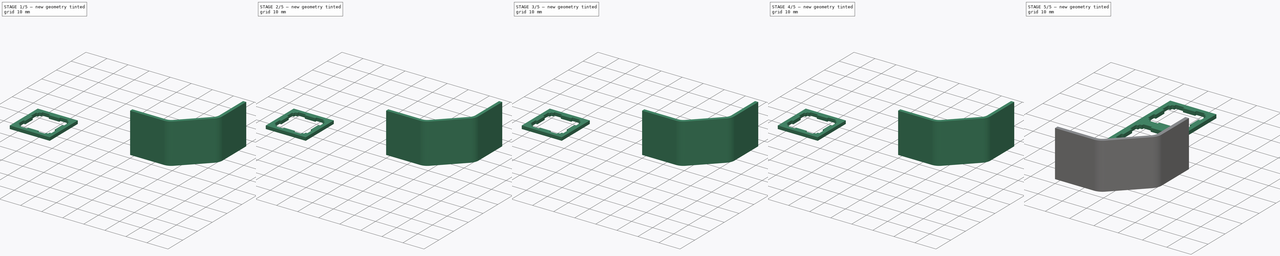
[diagram: build sequence overview — one tinted view per stage of 5, left to right]
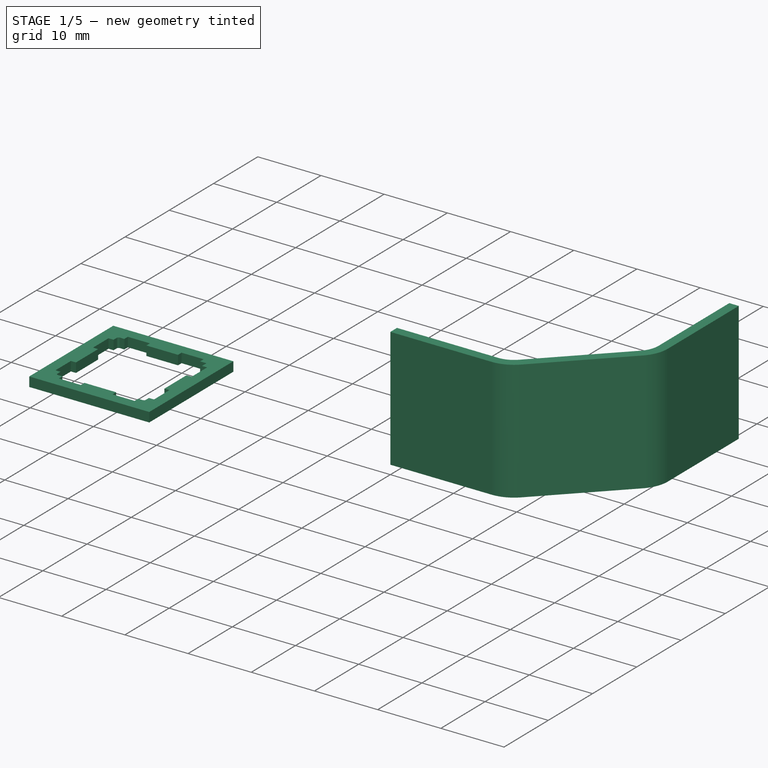
[diagram: stage 1 of 5 — iso view after this stage's code; geometry added in this stage tinted green]
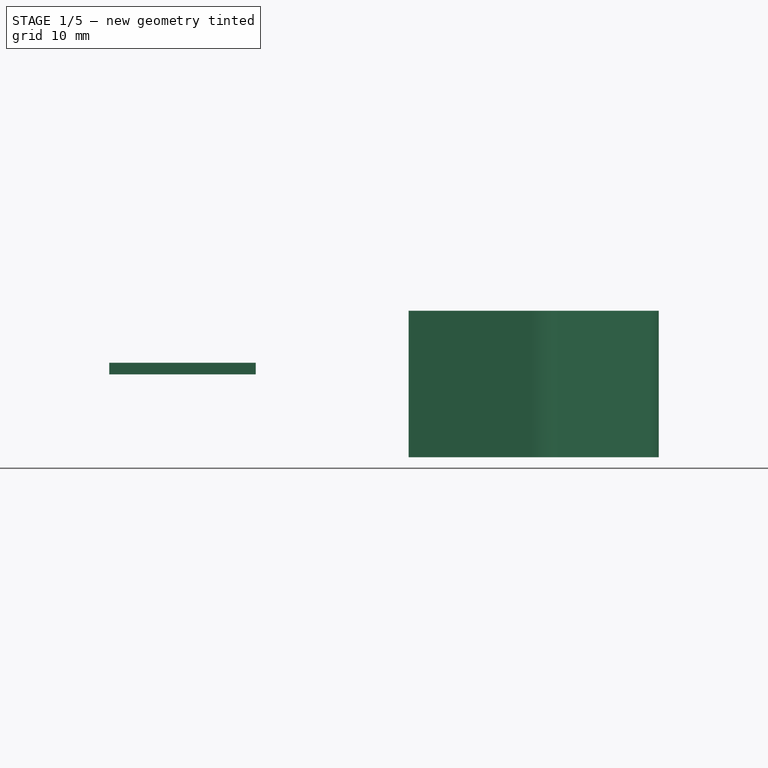
[diagram: stage 1 of 5 — front view after this stage's code; geometry added in this stage tinted green]
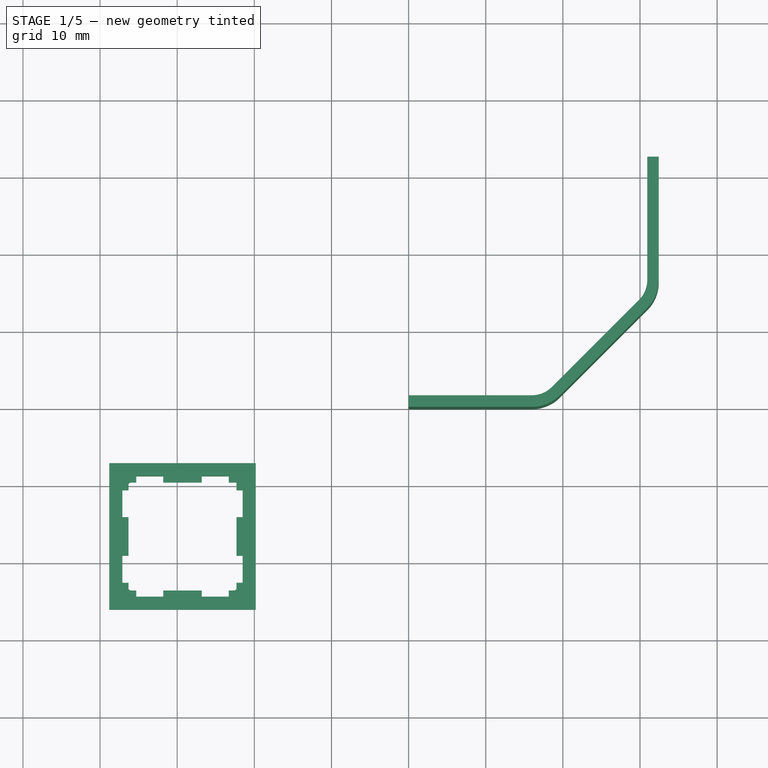
[diagram: stage 1 of 5 — top view after this stage's code; geometry added in this stage tinted green]
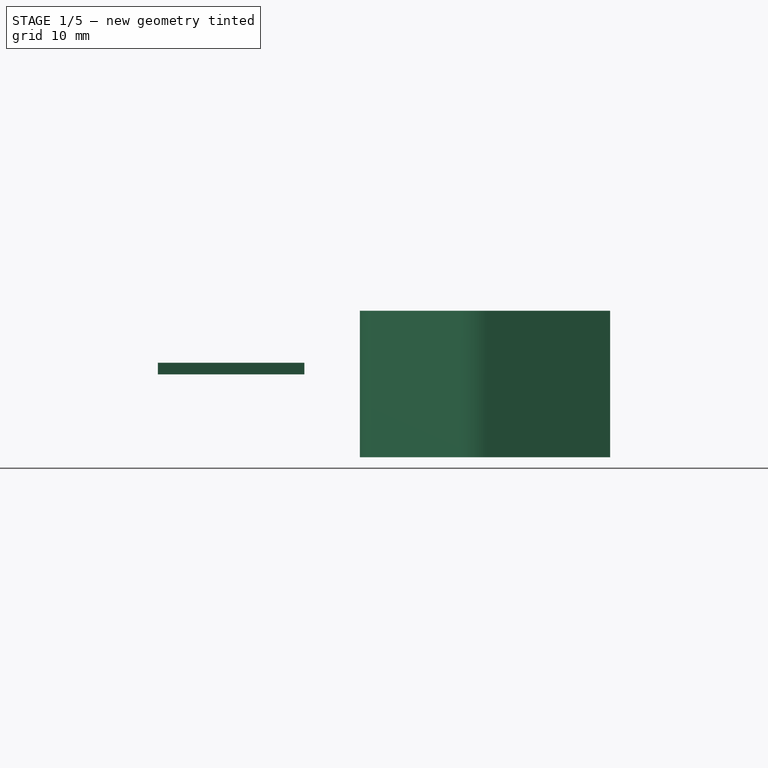
[diagram: stage 1 of 5 — right view after this stage's code; geometry added in this stage tinted green]
FCSTD DOCUMENT
Label: tryboard_2
objects: Part::Feature×48, Part::Fillet×20, Sketcher::SketchObject×3, Robot::TrajectoryObject×2, Robot::TrajectoryCompound×1, PartDesign::Pocket×1, Part::FeaturePython×1, PartDesign::Pad×1
note: 76 computed .brp shape members not serialized (recipe doc carries the construction recipe); baked Part::Feature solids carry a one-line shape summary decoded from their .brp

FEATURE [Part::Feature] rect5621_2_2_5_0_57_9_4_2_8_9_79_7_9_4_9
  shape: bbox 19.05 x 19.05 x 2e-07 mm, 1 faces, 0 solids (baked)
FEATURE [Part::Feature] rect5621_2_2_5_0_57_9_4_2_8_9_79_7_9_4_9001
  shape: bbox 15.59 x 15.59 x 2e-07 mm, 1 faces, 0 solids (baked)
FEATURE [Part::Feature] rect5621_2_2_5_0_57_9_4_2_8_9_4_2_0_5_2
  shape: bbox 19.05 x 19.05 x 2e-07 mm, 1 faces, 0 solids (baked)
FEATURE [Part::Feature] rect5621_2_2_5_0_57_9_4_2_8_9_4_2_0_5_2001
  shape: bbox 15.59 x 15.59 x 2e-07 mm, 1 faces, 0 solids (baked)
FEATURE [Part::Feature] rect5621_2_2_5_0_57_9_4_2_8_9_5_2_9_2_9
  shape: bbox 19.05 x 19.05 x 2e-07 mm, 1 faces, 0 solids (baked)
FEATURE [Part::Feature] rect5621_2_2_5_0_57_9_4_2_8_9_5_2_9_2_9001
  shape: bbox 15.59 x 15.59 x 2e-07 mm, 1 faces, 0 solids (baked)
FEATURE [Part::Feature] rect5621_2_2_5_0_57_9_4_2_8_9_79_74_2_69_5
  shape: bbox 19.05 x 19.05 x 2e-07 mm, 1 faces, 0 solids (baked)
FEATURE [Part::Feature] rect5621_2_2_5_0_57_9_4_2_8_9_79_74_2_69_5001
  shape: bbox 15.59 x 15.59 x 2e-07 mm, 1 faces, 0 solids (baked)
FEATURE [Part::Feature] rect5621_2_2_5_0_57_9_4_2_8_9_4_9_6_9_3
  shape: bbox 19.05 x 19.05 x 2e-07 mm, 1 faces, 0 solids (baked)
FEATURE [Part::Feature] rect5621_2_2_5_0_57_9_4_2_8_9_4_9_6_9_3001
  shape: bbox 15.59 x 15.59 x 2e-07 mm, 1 faces, 0 solids (baked)
FEATURE [Part::Feature] rect5621_2_2_5_0_57_9_4_2_8_9_5_3_0_53_6
  shape: bbox 19.05 x 19.05 x 2e-07 mm, 1 faces, 0 solids (baked)
FEATURE [Part::Feature] rect5621_2_2_5_0_57_9_4_2_8_9_5_3_0_53_6001
  shape: bbox 15.59 x 15.59 x 2e-07 mm, 1 faces, 0 solids (baked)
FEATURE [Part::Feature] rect5621_2_2_5_0_57_9_4_2_8_9_79_2_4_3_4
  shape: bbox 19.05 x 19.05 x 2e-07 mm, 1 faces, 0 solids (baked)
FEATURE [Part::Feature] rect5621_2_2_5_0_57_9_4_2_8_9_79_2_4_3_4001
  shape: bbox 15.59 x 15.59 x 2e-07 mm, 1 faces, 0 solids (baked)
FEATURE [Part::Feature] rect5621_2_2_5_0_57_9_4_2_8_9_4_0_2_39_3
  shape: bbox 19.05 x 19.05 x 2e-07 mm, 1 faces, 0 solids (baked)
FEATURE [Part::Feature] rect5621_2_2_5_0_57_9_4_2_8_9_4_0_2_39_3001
  shape: bbox 15.59 x 15.59 x 2e-07 mm, 1 faces, 0 solids (baked)
FEATURE [Part::Feature] rect5621_2_2_5_0_57_9_4_2_8_9_5_5_3_4_8
  shape: bbox 19.05 x 19.05 x 2e-07 mm, 1 faces, 0 solids (baked)
FEATURE [Part::Feature] rect5621_2_2_5_0_57_9_4_2_8_9_5_5_3_4_8001
  shape: bbox 15.59 x 15.59 x 2e-07 mm, 1 faces, 0 solids (baked)
FEATURE [Part::Feature] rect5621_2_2_5_0_57_9_4_2_8_9_79_7_7_55_2_2
  shape: bbox 19.05 x 19.05 x 2e-07 mm, 1 faces, 0 solids (baked)
FEATURE [Part::Feature] rect5621_2_2_5_0_57_9_4_2_8_9_79_7_7_55_2_2001
  shape: bbox 15.59 x 15.59 x 2e-07 mm, 1 faces, 0 solids (baked)
FEATURE [Part::Feature] rect5621_2_2_5_0_57_9_4_2_8_9_4_2_1_4_8_9
  shape: bbox 19.05 x 19.05 x 2e-07 mm, 1 faces, 0 solids (baked)
FEATURE [Part::Feature] rect5621_2_2_5_0_57_9_4_2_8_9_4_2_1_4_8_9001
  shape: bbox 15.59 x 15.59 x 2e-07 mm, 1 faces, 0 solids (baked)
FEATURE [Part::Feature] rect5621_2_2_5_0_57_9_4_2_8_9_5_2_6_5_6_2
  shape: bbox 19.05 x 19.05 x 2e-07 mm, 1 faces, 0 solids (baked)
FEATURE [Part::Feature] rect5621_2_2_5_0_57_9_4_2_8_9_5_2_6_5_6_2001
  shape: bbox 15.59 x 15.59 x 2e-07 mm, 1 faces, 0 solids (baked)
FEATURE [Part::Feature] rect5621_2_2_5_0_57_9_4_2_8_9_79_74_4_9_5_2
  shape: bbox 19.05 x 19.05 x 2e-07 mm, 1 faces, 0 solids (baked)
FEATURE [Part::Feature] rect5621_2_2_5_0_57_9_4_2_8_9_79_74_4_9_5_2001
  shape: bbox 15.59 x 15.59 x 2e-07 mm, 1 faces, 0 solids (baked)
FEATURE [Part::Feature] rect5621_2_2_5_0_57_9_4_2_8_9_4_9_7_6_9_2
  shape: bbox 19.05 x 19.05 x 2e-07 mm, 1 faces, 0 solids (baked)
FEATURE [Part::Feature] rect5621_2_2_5_0_57_9_4_2_8_9_4_9_7_6_9_2001
  shape: bbox 15.59 x 15.59 x 2e-07 mm, 1 faces, 0 solids (baked)
FEATURE [Part::Feature] rect5621_2_2_5_0_57_9_4_2_8_9_5_3_3_4_3_5
  shape: bbox 19.05 x 19.05 x 2e-07 mm, 1 faces, 0 solids (baked)
FEATURE [Part::Feature] rect5621_2_2_5_0_57_9_4_2_8_9_5_3_3_4_3_5001
  shape: bbox 15.59 x 15.59 x 2e-07 mm, 1 faces, 0 solids (baked)
FEATURE [Part::Feature] rect5621_2_2_5_0_57_9_4_2_8_9_1_7_4_3
  shape: bbox 19.05 x 19.05 x 2e-07 mm, 1 faces, 0 solids (baked)
FEATURE [Part::Feature] rect5621_2_2_5_0_57_9_4_2_8_9_1_7_4_3001
  shape: bbox 15.59 x 15.59 x 2e-07 mm, 1 faces, 0 solids (baked)
FEATURE [Part::Feature] rect5621_2_2_5_0_57_9_4_2_8_9_8_1_6_7_3_8_4
  shape: bbox 38.1 x 19.05 x 2e-07 mm, 1 faces, 0 solids (baked)
FEATURE [Part::Feature] rect5621_2_2_5_0_57_9_4_2_8_9_8_1_6_7_3_8_4001
  shape: bbox 3.334 x 13.98 x 2e-07 mm, 1 faces, 0 solids (baked)
FEATURE [Part::Feature] rect5621_2_2_5_0_57_9_4_2_8_9_8_1_6_7_3_8_4002
  shape: bbox 15.59 x 15.59 x 2e-07 mm, 1 faces, 0 solids (baked)
FEATURE [Part::Feature] rect5621_2_2_5_0_57_9_4_2_8_9_8_1_6_7_3_8_4003
  shape: bbox 3.325 x 13.98 x 2e-07 mm, 1 faces, 0 solids (baked)
FEATURE [Part::Feature] rect5621_2_2_5_0_57_9_4_2_8_9_79_7_9_4_9_9
  shape: bbox 19.05 x 19.05 x 2e-07 mm, 1 faces, 0 solids (baked)
FEATURE [Part::Feature] rect5621_2_2_5_0_57_9_4_2_8_9_79_7_9_4_9_9001
  shape: bbox 15.59 x 15.59 x 2e-07 mm, 1 faces, 0 solids (baked)
FEATURE [Part::Feature] rect5621_2_2_5_0_57_9_4_2_8_9_4_2_0_5_2_0
  shape: bbox 19.05 x 19.05 x 2e-07 mm, 1 faces, 0 solids (baked)
FEATURE [Part::Feature] rect5621_2_2_5_0_57_9_4_2_8_9_4_2_0_5_2_0001
  shape: bbox 15.59 x 15.59 x 2e-07 mm, 1 faces, 0 solids (baked)
FEATURE [Part::Feature] rect5621_2_2_5_0_57_9_4_2_8_9_5_2_9_2_9_6
  shape: bbox 19.05 x 19.05 x 2e-07 mm, 1 faces, 0 solids (baked)
FEATURE [Part::Feature] rect5621_2_2_5_0_57_9_4_2_8_9_5_2_9_2_9_6001
  shape: bbox 15.59 x 15.59 x 2e-07 mm, 1 faces, 0 solids (baked)
FEATURE [Part::Feature] rect7292_1_2_0_0_1_0_4
  shape: bbox 19.05 x 28.58 x 2e-07 mm, 1 faces, 0 solids (baked)
FEATURE [Part::Feature] rect7292_1_2_0_0_1_0_4001
  Placement = pos=(9.01355,14.3675,11.5639) rot=(0,0,1;0rad)
  shape: bbox 15.59 x 15.59 x 2e-07 mm, 1 faces, 0 solids (baked)
FEATURE [Part::Feature] rect5621_2_2_5_0_57_9_4_2_8_9_5_2_9_9_3_7_7_4_0_06_1
  shape: bbox 57.15 x 2.381 x 2e-07 mm, 1 faces, 0 solids (baked)
FEATURE [Part::Feature] rect7292_1_2_6_8_7_5
  shape: bbox 28.58 x 19.05 x 2e-07 mm, 1 faces, 0 solids (baked)
FEATURE [Part::Feature] rect7292_1_2_6_8_7_5001
  shape: bbox 15.59 x 15.59 x 2e-07 mm, 1 faces, 0 solids (baked)
FEATURE [Part::Feature] rect5621_2_2_5_0_57_9_4_2_8_9_5_2_9_9_3_7_74_5_1_5
  shape: bbox 28.58 x 4.763 x 2e-07 mm, 1 faces, 0 solids (baked)
FEATURE [Robot::TrajectoryObject] Trajectory
FEATURE [Robot::TrajectoryObject] Trajectory001
FEATURE [Robot::TrajectoryCompound] TrajectoryCompound
FEATURE [Sketcher::SketchObject] Sketch003
  Placement = pos=(-29.3145,-16.694,12.2475) rot=(0,0,1;0rad)
  sketch-geometry (16):
    g0: LineSegment StartX=-6 StartY=7.8 StartZ=0 EndX=-2.5 EndY=7.8 EndZ=0
    g1: LineSegment StartX=-2.5 StartY=7.8 StartZ=0 EndX=-2.5 EndY=-7.8 EndZ=0
    g2: LineSegment StartX=-2.5 StartY=-7.8 StartZ=0 EndX=-6 EndY=-7.8 EndZ=0
    g3: LineSegment StartX=-6 StartY=-7.8 StartZ=0 EndX=-6 EndY=7.8 EndZ=0
    g4: LineSegment StartX=2.5 StartY=7.8 StartZ=0 EndX=6 EndY=7.8 EndZ=0
    g5: LineSegment StartX=6 StartY=7.8 StartZ=0 EndX=6 EndY=-7.8 EndZ=0
    g6: LineSegment StartX=6 StartY=-7.8 StartZ=0 EndX=2.5 EndY=-7.8 EndZ=0
    g7: LineSegment StartX=2.5 StartY=-7.8 StartZ=0 EndX=2.5 EndY=7.8 EndZ=0
    g8: LineSegment StartX=-7.8 StartY=6 StartZ=0 EndX=7.8 EndY=6 EndZ=0
    g9: LineSegment StartX=7.8 StartY=6 StartZ=0 EndX=7.8 EndY=2.5 EndZ=0
    g10: LineSegment StartX=7.8 StartY=2.5 StartZ=0 EndX=-7.8 EndY=2.5 EndZ=0
    g11: LineSegment StartX=-7.8 StartY=2.5 StartZ=0 EndX=-7.8 EndY=6 EndZ=0
    g12: LineSegment StartX=-7.8 StartY=-2.5 StartZ=0 EndX=7.8 EndY=-2.5 EndZ=0
    g13: LineSegment StartX=7.8 StartY=-2.5 StartZ=0 EndX=7.8 EndY=-6 EndZ=0
    g14: LineSegment StartX=7.8 StartY=-6 StartZ=0 EndX=-7.8 EndY=-6 EndZ=0
    g15: LineSegment StartX=-7.8 StartY=-6 StartZ=0 EndX=-7.8 EndY=-2.5 EndZ=0
  constraints (47):
    c: Coincident(g0,g1)
    c: Coincident(g1,g2)
    c: Coincident(g2,g3)
    c: Coincident(g3,g0)
    c: Horizontal(g0)
    c: Horizontal(g2)
    c: Vertical(g1)
    c: Vertical(g3)
    c: Symmetric(g2,g0,g-1)
    c: Distance(g2) = 3.5
    c: Distance(g3) = 15.6
    c: Coincident(g4,g5)
    c: Coincident(g5,g6)
    c: Coincident(g6,g7)
    c: Coincident(g7,g4)
    c: Horizontal(g4)
    c: Horizontal(g6)
    c: Vertical(g5)
    c: Vertical(g7)
    c: Symmetric(g4,g5,g-1)
    c: Equal(g7,g3)
    c: Equal(g6,g2)
    c: Symmetric(g0,g4,g-2)
    c: Distance(g1,g6) = 5
    c: Coincident(g8,g9)
    c: Coincident(g9,g10)
    c: Coincident(g10,g11)
    c: Coincident(g11,g8)
    c: Horizontal(g8)
    c: Horizontal(g10)
    c: Vertical(g9)
    c: Vertical(g11)
    c: Coincident(g12,g13)
    c: Coincident(g13,g14)
    c: Coincident(g14,g15)
    c: Coincident(g15,g12)
    c: Horizontal(g12)
    c: Horizontal(g14)
    c: Vertical(g13)
    c: Vertical(g15)
    c: Equal(g10,g14)
    c: Equal(g14,g3)
    c: Equal(g13,g9)
    c: Equal(g9,g2)
    c: Symmetric(g12,g9,g-1)
    c: Symmetric(g13,g14,g-2)
    c: Distance(g10,g12) = 5
FEATURE [PartDesign::Pocket] Pocket001
  Length = 5
  Placement = pos=(-29.3145,-16.694,10.7475) rot=(0,0,1;0rad)
  Sketch = -> Sketch003
  Type = 1
FEATURE [Part::Fillet] Fillet
  Base = -> Pocket001
  Edges = 1 edges r=0.3: [Edge115]
FEATURE [Part::Fillet] Fillet001
  Base = -> Fillet
  Edges = 1 edges r=0.3: [Edge81]
FEATURE [Part::Fillet] Fillet002
  Base = -> Fillet001
  Edges = 1 edges r=0.3: [Edge82]
FEATURE [Sketcher::SketchObject] Sketch
  sketch-geometry (44):
    g0: LineSegment StartX=0 StartY=0 StartZ=0 EndX=16 EndY=0 EndZ=0
    g1: LineSegment [constr] StartX=16 StartY=0 StartZ=0 EndX=16 EndY=1.5 EndZ=0
    g2: LineSegment StartX=16 StartY=1.5 StartZ=0 EndX=0 EndY=1.5 EndZ=0
    g3: LineSegment StartX=0 StartY=1.5 StartZ=0 EndX=0 EndY=0 EndZ=0
    g4: LineSegment [constr] StartX=16 StartY=0 StartZ=0 EndX=17.5 EndY=0 EndZ=0
    g5: LineSegment [constr] StartX=17.5 StartY=0 StartZ=0 EndX=17.5 EndY=1.5 EndZ=0
    g6: LineSegment [constr] StartX=17.5 StartY=1.5 StartZ=0 EndX=16 EndY=1.5 EndZ=0
    g7: LineSegment [constr] StartX=16 StartY=1.5 StartZ=0 EndX=16 EndY=0 EndZ=0
    g8: LineSegment [constr] StartX=18.5607 StartY=2.56066 StartZ=0 EndX=19.6213 EndY=1.5 EndZ=0
    g9: LineSegment StartX=19.6213 StartY=1.5 StartZ=0 EndX=30.935 EndY=12.8137 EndZ=0
    g10: LineSegment [constr] StartX=30.935 StartY=12.8137 StartZ=0 EndX=29.8744 EndY=13.8744 EndZ=0
    g11: LineSegment StartX=29.8744 StartY=13.8744 StartZ=0 EndX=18.5607 EndY=2.56066 EndZ=0
    g12: LineSegment [constr] StartX=19.6213 StartY=1.5 StartZ=0 EndX=18.5607 EndY=2.56066 EndZ=0
    g13: LineSegment [constr] StartX=18.5607 StartY=2.56066 StartZ=0 EndX=17.5 EndY=1.5 EndZ=0
    g14: LineSegment [constr] StartX=17.5 StartY=1.5 StartZ=0 EndX=18.5607 EndY=0.43934 EndZ=0
    g15: LineSegment [constr] StartX=18.5607 StartY=0.43934 StartZ=0 EndX=19.6213 EndY=1.5 EndZ=0
    g16: LineSegment [constr] StartX=29.8744 StartY=13.8744 StartZ=0 EndX=30.935 EndY=12.8137 EndZ=0
    g17: LineSegment [constr] StartX=30.935 StartY=12.8137 StartZ=0 EndX=31.9957 EndY=13.8744 EndZ=0
    g18: LineSegment [constr] StartX=31.9957 StartY=13.8744 StartZ=0 EndX=30.935 EndY=14.935 EndZ=0
    g19: LineSegment [constr] StartX=30.935 StartY=14.935 StartZ=0 EndX=29.8744 EndY=13.8744 EndZ=0
    g20: LineSegment [constr] StartX=32.435 StartY=16.435 StartZ=0 EndX=30.935 EndY=16.435 EndZ=0
    g21: LineSegment StartX=30.935 StartY=16.435 StartZ=0 EndX=30.935 EndY=32.435 EndZ=0
    g22: LineSegment StartX=30.935 StartY=32.435 StartZ=0 EndX=32.435 EndY=32.435 EndZ=0
    g23: LineSegment StartX=32.435 StartY=32.435 StartZ=0 EndX=32.435 EndY=16.435 EndZ=0
    g24: LineSegment [constr] StartX=32.435 StartY=16.435 StartZ=0 EndX=30.935 EndY=16.435 EndZ=0
    g25: LineSegment [constr] StartX=30.935 StartY=16.435 StartZ=0 EndX=30.935 EndY=14.935 EndZ=0
    g26: LineSegment [constr] StartX=30.935 StartY=14.935 StartZ=0 EndX=32.435 EndY=14.935 EndZ=0
    g27: LineSegment [constr] StartX=32.435 StartY=14.935 StartZ=0 EndX=32.435 EndY=16.435 EndZ=0
    g28: LineSegment [constr] StartX=32.435 StartY=33.935 StartZ=0 EndX=30.935 EndY=33.935 EndZ=0
    g29: LineSegment [constr] StartX=30.935 StartY=33.935 StartZ=0 EndX=30.935 EndY=32.435 EndZ=0
    g30: LineSegment [constr] StartX=30.935 StartY=32.435 StartZ=0 EndX=32.435 EndY=32.435 EndZ=0
    g31: LineSegment [constr] StartX=32.435 StartY=32.435 StartZ=0 EndX=32.435 EndY=33.935 EndZ=0
    g32: LineSegment [constr] StartX=-1.5 StartY=1.5 StartZ=0 EndX=0 EndY=1.5 EndZ=0
    g33: LineSegment [constr] StartX=0 StartY=1.5 StartZ=0 EndX=0 EndY=0 EndZ=0
    g34: LineSegment [constr] StartX=0 StartY=0 StartZ=0 EndX=-1.5 EndY=0 EndZ=0
    g35: LineSegment [constr] StartX=-1.5 StartY=0 StartZ=0 EndX=-1.5 EndY=1.5 EndZ=0
    g36: LineSegment [constr] StartX=16 StartY=1.5 StartZ=0 EndX=16 EndY=5.12132 EndZ=0
    g37: LineSegment [constr] StartX=18.5607 StartY=2.56066 StartZ=0 EndX=16 EndY=5.12132 EndZ=0
    g38: LineSegment [constr] StartX=30.935 StartY=16.435 StartZ=0 EndX=27.3137 EndY=16.435 EndZ=0
    g39: LineSegment [constr] StartX=29.8744 StartY=13.8744 StartZ=0 EndX=27.3137 EndY=16.435 EndZ=0
    g40: ArcOfCircle CenterX=16 CenterY=5.12132 CenterZ=0 NormalX=0 NormalY=0 NormalZ=1 Radius=3.62132 StartAngle=4.71239 EndAngle=5.49779
    g41: ArcOfCircle CenterX=16 CenterY=5.12132 CenterZ=0 NormalX=0 NormalY=0 NormalZ=1 Radius=5.12132 StartAngle=4.71239 EndAngle=5.49779
    g42: ArcOfCircle CenterX=27.3137 CenterY=16.435 CenterZ=0 NormalX=0 NormalY=0 NormalZ=1 Radius=3.62132 StartAngle=5.49779 EndAngle=6.28319
    g43: ArcOfCircle CenterX=27.3137 CenterY=16.435 CenterZ=0 NormalX=0 NormalY=0 NormalZ=1 Radius=5.12132 StartAngle=5.49779 EndAngle=6.28319
  constraints (119):
    c: Coincident(g0,g1)
    c: Coincident(g1,g2)
    c: Coincident(g2,g3)
    c: Coincident(g3,g0)
    c: Horizontal(g0)
    c: Horizontal(g2)
    c: Vertical(g1)
    c: Vertical(g3)
    c: Coincident(g0,g-1)
    c: Distance(g3) = 1.5
    c: Coincident(g4,g5)
    c: Coincident(g5,g6)
    c: Coincident(g6,g7)
    c: Coincident(g7,g4)
    c: Horizontal(g4)
    c: Horizontal(g6)
    c: Vertical(g5)
    c: Vertical(g7)
    c: Coincident(g4,g0)
    c: Equal(g6,g5)
    c: Coincident(g6,g1)
    c: Coincident(g8,g9)
    c: Coincident(g9,g10)
    c: Coincident(g10,g11)
    c: Coincident(g11,g8)
    c: Parallel(g11,g9)
    c: Parallel(g10,g8)
    c: Perpendicular(g11,g8)
    c: Equal(g8,g3)
    c: Distance(g9) = 16
    c: Coincident(g12,g13)
    c: Coincident(g13,g14)
    c: Coincident(g14,g15)
    c: Coincident(g15,g12)
    c: Coincident(g12,g8)
    c: Perpendicular(g15,g14)
    c: Parallel(g13,g15)
    c: Parallel(g12,g14)
    c: Equal(g15,g14)
    c: Coincident(g8,g12)
    c: Coincident(g5,g13)
    c: Angle(g13,g6) = 2.35619
    c: Coincident(g16,g17)
    c: Coincident(g17,g18)
    c: Coincident(g18,g19)
    c: Coincident(g19,g16)
    c: Coincident(g16,g10)
    c: Perpendicular(g18,g19)
    c: Parallel(g17,g19)
    c: Parallel(g18,g16)
    c: Equal(g18,g19)
    c: Coincident(g16,g9)
    c: Coincident(g20,g21)
    c: Coincident(g21,g22)
    c: Coincident(g22,g23)
    c: Coincident(g23,g20)
    c: Horizontal(g20)
    c: Horizontal(g22)
    c: Vertical(g21)
    c: Vertical(g23)
    c: Equal(g21,g9)
    c: Equal(g10,g20)
    c: Coincident(g24,g25)
    c: Coincident(g25,g26)
    c: Coincident(g26,g27)
    c: Coincident(g27,g24)
    c: Horizontal(g24)
    c: Horizontal(g26)
    c: Vertical(g25)
    c: Vertical(g27)
    c: Equal(g25,g26)
    c: Coincident(g24,g20)
    c: Coincident(g24,g20)
    c: Coincident(g28,g29)
    c: Coincident(g29,g30)
    c: Coincident(g30,g31)
    c: Coincident(g31,g28)
    c: Horizontal(g28)
    c: Horizontal(g30)
    c: Vertical(g29)
    c: Vertical(g31)
    c: Equal(g28,g29)
    c: Coincident(g30,g22)
    c: Coincident(g21,g29)
    c: Coincident(g25,g18)
    c: Equal(g2,g11)
    c: Coincident(g32,g33)
    c: Coincident(g33,g34)
    c: Coincident(g34,g35)
    c: Coincident(g35,g32)
    c: Horizontal(g32)
    c: Horizontal(g34)
    c: Vertical(g33)
    c: Vertical(g35)
    c: Equal(g35,g32)
    c: Coincident(g32,g2)
    c: Coincident(g33,g-1)
    c: Coincident(g36,g1)
    c: Vertical(g36)
    c: Coincident(g37,g8)
    c: Coincident(g37,g36)
    c: Perpendicular(g37,g11)
    c: Coincident(g38,g20)
    c: Horizontal(g38)
    c: Coincident(g39,g10)
    c: Coincident(g39,g38)
    c: Perpendicular(g39,g11)
    c: Coincident(g40,g36)
    c: Coincident(g40,g1)
    c: Coincident(g40,g8)
    c: Coincident(g41,g36)
    c: Coincident(g41,g0)
    c: Coincident(g41,g8)
    c: Coincident(g42,g38)
    c: Coincident(g42,g10)
    c: Coincident(g42,g20)
    c: Coincident(g43,g38)
    c: Coincident(g43,g9)
    c: Coincident(g43,g20)
FEATURE [PartDesign::Pad] Pad
  Length = 19
  Length2 = 100
  Sketch = -> Sketch
  Type = 0
FEATURE [Sketcher::SketchObject] Sketch004
  ExternalGeometry = -> [Pad]
  Placement = pos=(8.00001,-8,0) rot=(-0.281085,0.678598,0.678598;3.68962rad)
  Support = -> Pad [Face8]
  sketch-geometry (25):
    g0: LineSegment StartX=-28.935 StartY=17.7688 StartZ=0 EndX=-25.435 EndY=17.7688 EndZ=0
    g1: LineSegment StartX=-25.435 StartY=17.7688 StartZ=0 EndX=-25.435 EndY=2.16875 EndZ=0
    g2: LineSegment StartX=-25.435 StartY=2.16875 StartZ=0 EndX=-28.935 EndY=2.16875 EndZ=0
    g3: LineSegment StartX=-28.935 StartY=2.16875 StartZ=0 EndX=-28.935 EndY=17.7688 EndZ=0
    g4: LineSegment StartX=-20.435 StartY=17.7688 StartZ=0 EndX=-16.935 EndY=17.7688 EndZ=0
    g5: LineSegment StartX=-16.935 StartY=17.7688 StartZ=0 EndX=-16.935 EndY=2.16875 EndZ=0
    g6: LineSegment StartX=-16.935 StartY=2.16875 StartZ=0 EndX=-20.435 EndY=2.16875 EndZ=0
    g7: LineSegment StartX=-20.435 StartY=2.16875 StartZ=0 EndX=-20.435 EndY=17.7688 EndZ=0
    g8: LineSegment StartX=-30.735 StartY=15.9688 StartZ=0 EndX=-15.135 EndY=15.9688 EndZ=0
    g9: LineSegment StartX=-15.135 StartY=15.9688 StartZ=0 EndX=-15.135 EndY=12.4688 EndZ=0
    g10: LineSegment StartX=-15.135 StartY=12.4688 StartZ=0 EndX=-30.735 EndY=12.4688 EndZ=0
    g11: LineSegment StartX=-30.735 StartY=12.4688 StartZ=0 EndX=-30.735 EndY=15.9688 EndZ=0
    g12: LineSegment StartX=-30.735 StartY=7.46875 StartZ=0 EndX=-15.135 EndY=7.46875 EndZ=0
    g13: LineSegment StartX=-15.135 StartY=7.46875 StartZ=0 EndX=-15.135 EndY=3.96875 EndZ=0
    g14: LineSegment StartX=-15.135 StartY=3.96875 StartZ=0 EndX=-30.735 EndY=3.96875 EndZ=0
    g15: LineSegment StartX=-30.735 StartY=3.96875 StartZ=0 EndX=-30.735 EndY=7.46875 EndZ=0
    g16: LineSegment [constr] StartX=-25.435 StartY=2.16875 StartZ=0 EndX=-20.435 EndY=2.16875 EndZ=0
    g17: LineSegment [constr] StartX=-30.735 StartY=12.4688 StartZ=0 EndX=-30.735 EndY=7.46875 EndZ=0
    g18: LineSegment [constr] StartX=-30.735 StartY=3.96875 StartZ=0 EndX=-28.935 EndY=2.16875 EndZ=0
    g19: LineSegment [constr] StartX=-15.135 StartY=15.9688 StartZ=0 EndX=-16.935 EndY=17.7688 EndZ=0
    g20: LineSegment [constr] StartX=-30.735 StartY=15.9688 StartZ=0 EndX=-28.935 EndY=17.7688 EndZ=0
    g21: LineSegment [constr] StartX=-30.935 StartY=19 StartZ=0 EndX=-14.935 EndY=0 EndZ=0
    g22: LineSegment [constr] StartX=-14.935 StartY=19 StartZ=0 EndX=-30.935 EndY=0 EndZ=0
    g23: GeomPoint [constr] X=-25.435 Y=12.4688 Z=0
    g24: GeomPoint [constr] X=-20.435 Y=12.4688 Z=0
  constraints (66):
    c: Coincident(g0,g1)
    c: Coincident(g1,g2)
    c: Coincident(g2,g3)
    c: Coincident(g3,g0)
    c: Horizontal(g0)
    c: Horizontal(g2)
    c: Vertical(g1)
    c: Vertical(g3)
    c: Coincident(g4,g5)
    c: Coincident(g5,g6)
    c: Coincident(g6,g7)
    c: Coincident(g7,g4)
    c: Horizontal(g4)
    c: Horizontal(g6)
    c: Vertical(g5)
    c: Vertical(g7)
    c: Coincident(g8,g9)
    c: Coincident(g9,g10)
    c: Coincident(g10,g11)
    c: Coincident(g11,g8)
    c: Horizontal(g8)
    c: Horizontal(g10)
    c: Vertical(g9)
    c: Vertical(g11)
    c: Coincident(g12,g13)
    c: Coincident(g13,g14)
    c: Coincident(g14,g15)
    c: Coincident(g15,g12)
    c: Horizontal(g12)
    c: Horizontal(g14)
    c: Vertical(g13)
    c: Vertical(g15)
    c: Equal(g10,g12)
    c: Equal(g12,g1)
    c: Equal(g1,g7)
    c: Distance(g5) = 15.6
    c: Distance(g1,g6) = 5
    c: Equal(g6,g13)
    c: Equal(g13,g9)
    c: Equal(g9,g2)
    c: Distance(g6) = 3.5
    c: Coincident(g16,g1)
    c: Coincident(g16,g6)
    c: Horizontal(g16)
    c: Coincident(g17,g10)
    c: Coincident(g17,g12)
    c: Vertical(g17)
    c: Coincident(g18,g14)
    c: Coincident(g18,g2)
    c: Angle(g18,g14) = 0.785398
    c: Coincident(g19,g8)
    c: Coincident(g19,g4)
    c: Angle(g5,g19) = 0.785398
    c: Coincident(g20,g8)
    c: Coincident(g20,g0)
    c: Angle(g8,g20) = 0.785398
    c: Coincident(g-4,g21)
    c: Coincident(g22,g-4)
    c: Coincident(g22,g-3)
    c: PointOnObject(g23,g21)
    c: PointOnObject(g23,g1)
    c: PointOnObject(g23,g10)
    c: PointOnObject(g24,g22)
    c: PointOnObject(g24,g7)
    c: PointOnObject(g24,g10)
    c: Coincident(g21,g-3)
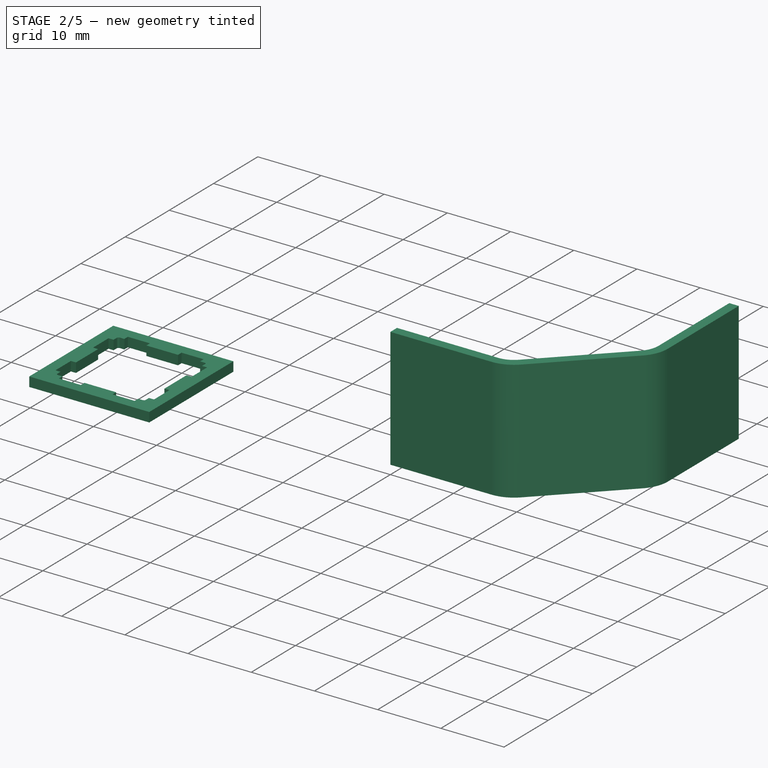
[diagram: stage 2 of 5 — iso view after this stage's code; geometry added in this stage tinted green]
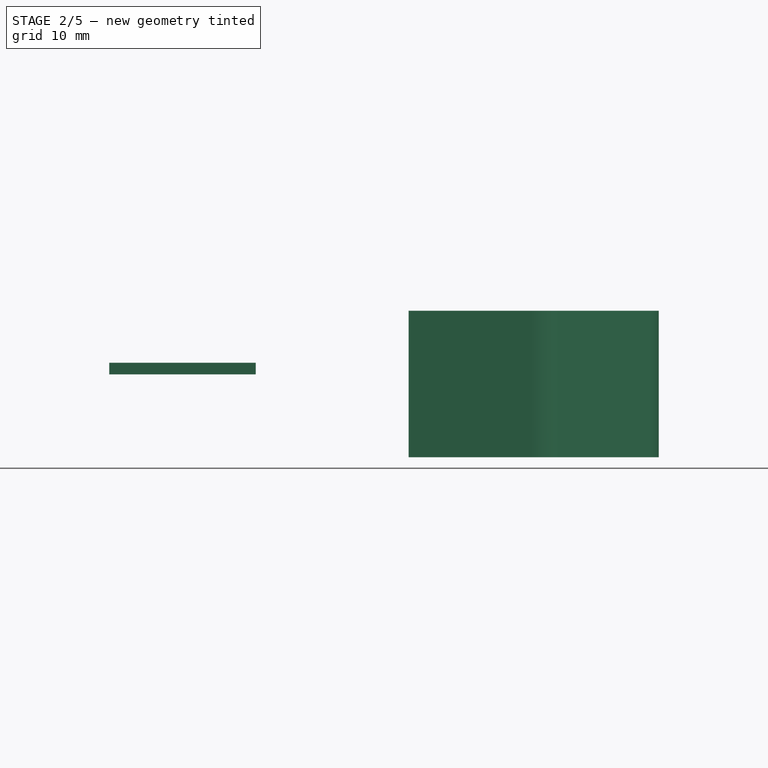
[diagram: stage 2 of 5 — front view after this stage's code; geometry added in this stage tinted green]
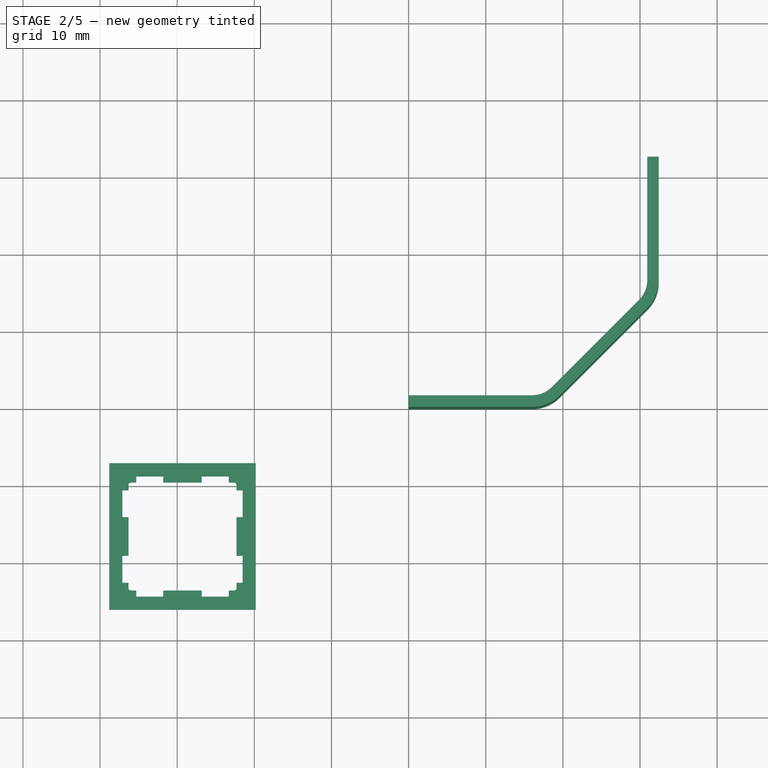
[diagram: stage 2 of 5 — top view after this stage's code; geometry added in this stage tinted green]
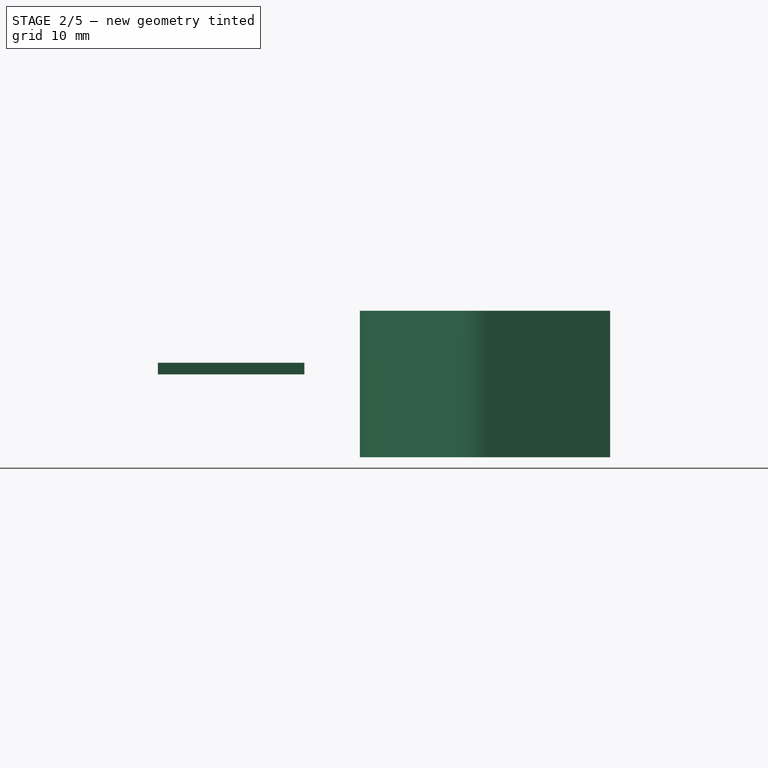
[diagram: stage 2 of 5 — right view after this stage's code; geometry added in this stage tinted green]
FEATURE [Part::Fillet] Fillet003
  Base = -> Fillet002
  Edges = 1 edges r=0.3: [Edge83]
FEATURE [Part::Fillet] Fillet004
  Base = -> Fillet003
  Edges = 1 edges r=0.1: [Edge71]
FEATURE [Part::Fillet] Fillet005
  Base = -> Fillet004
  Edges = 1 edges r=0.1: [Edge70]
FEATURE [Part::Fillet] Fillet006
  Base = -> Fillet005
  Edges = 1 edges r=0.1: [Edge67]
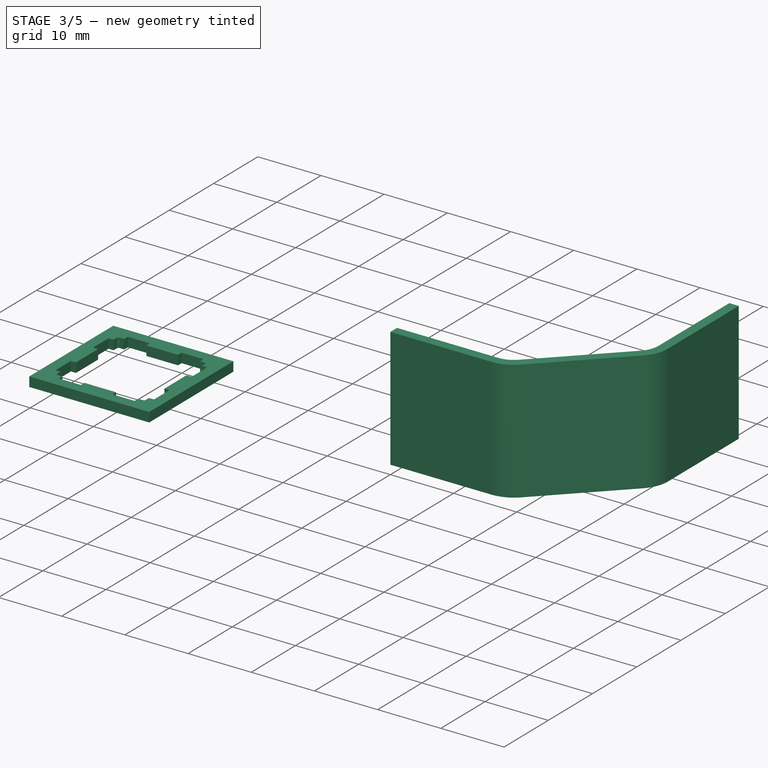
[diagram: stage 3 of 5 — iso view after this stage's code; geometry added in this stage tinted green]
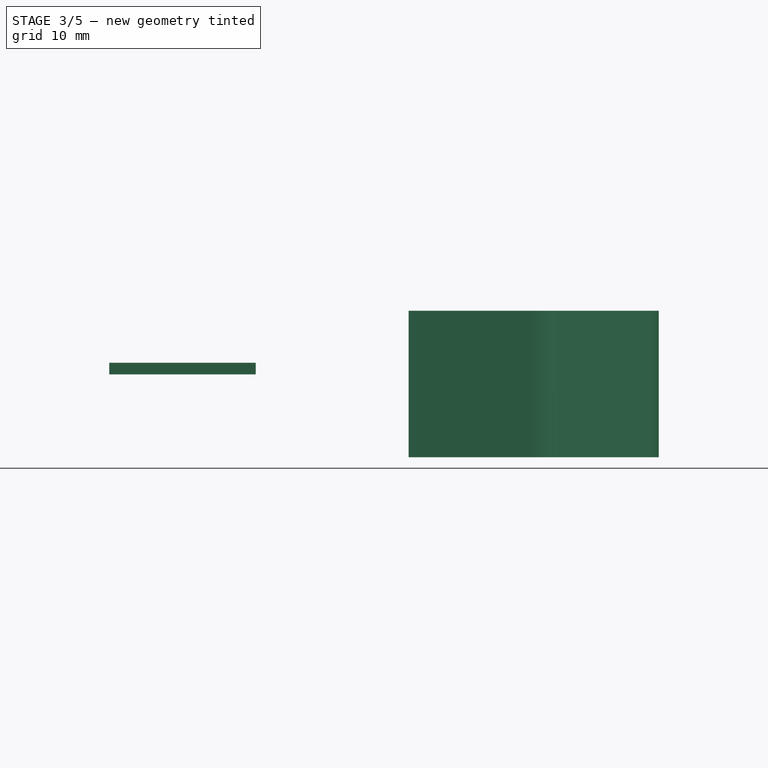
[diagram: stage 3 of 5 — front view after this stage's code; geometry added in this stage tinted green]
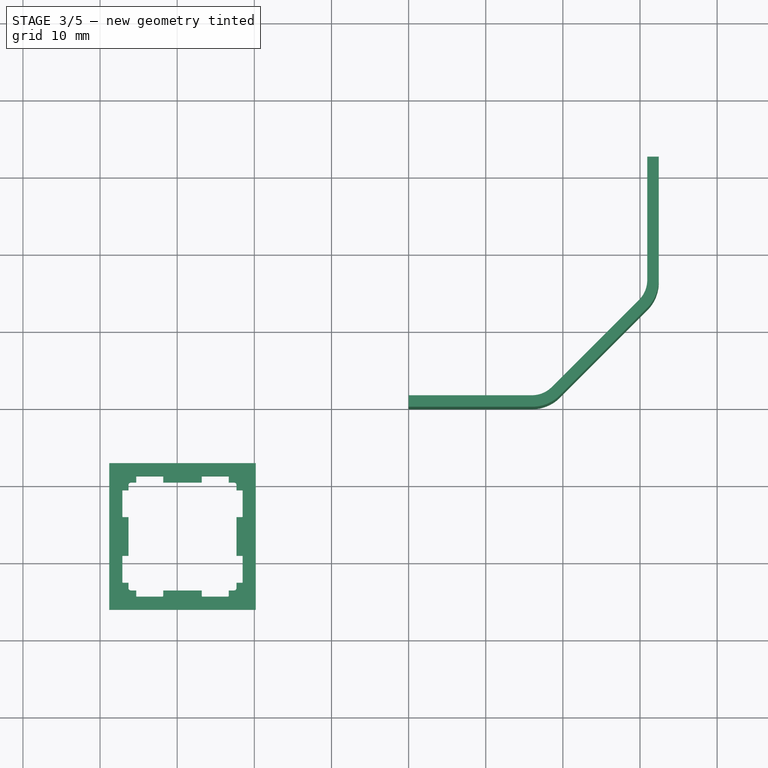
[diagram: stage 3 of 5 — top view after this stage's code; geometry added in this stage tinted green]
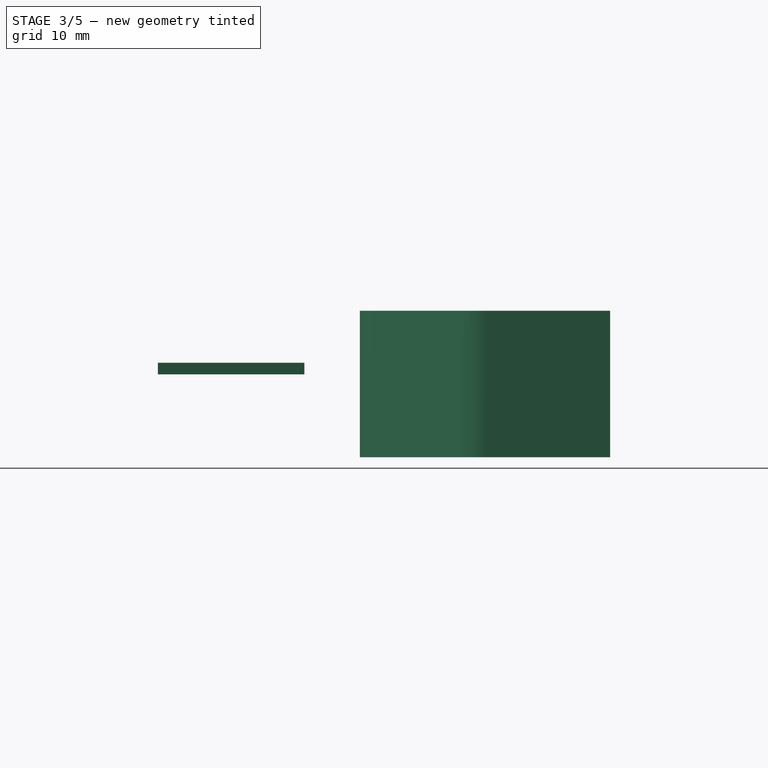
[diagram: stage 3 of 5 — right view after this stage's code; geometry added in this stage tinted green]
FEATURE [Part::Fillet] Fillet007
  Base = -> Fillet006
  Edges = 1 edges r=0.1: [Edge105]
FEATURE [Part::Fillet] Fillet008
  Base = -> Fillet007
  Edges = 1 edges r=0.1: [Edge95]
FEATURE [Part::Fillet] Fillet009
  Base = -> Fillet008
  Edges = 1 edges r=0.1: [Edge74]
FEATURE [Part::Fillet] Fillet010
  Base = -> Fillet009
  Edges = 1 edges r=0.1: [Edge75]
FEATURE [Part::Fillet] Fillet011
  Base = -> Fillet010
  Edges = 1 edges r=0.1: [Edge72]
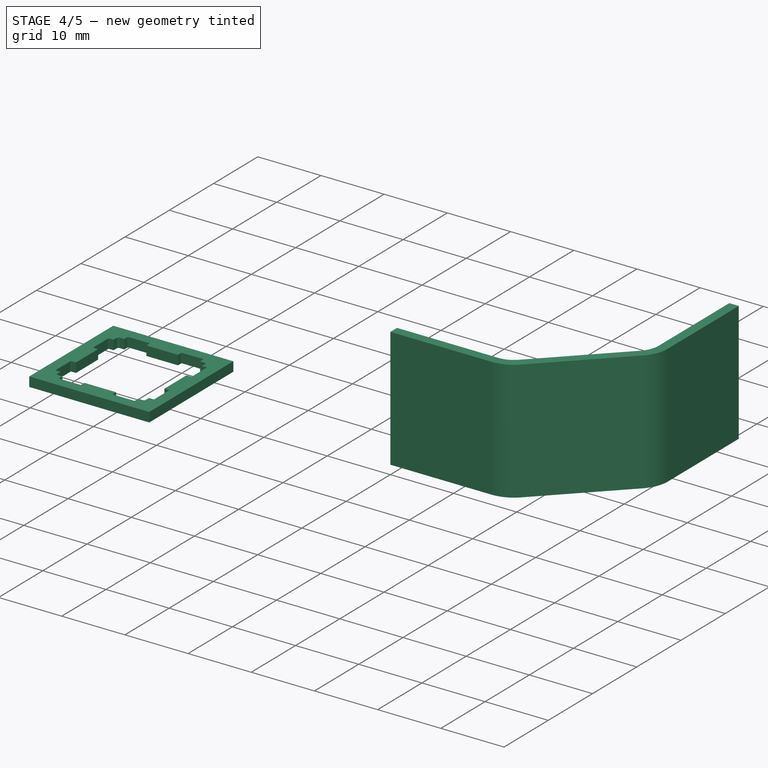
[diagram: stage 4 of 5 — iso view after this stage's code; geometry added in this stage tinted green]
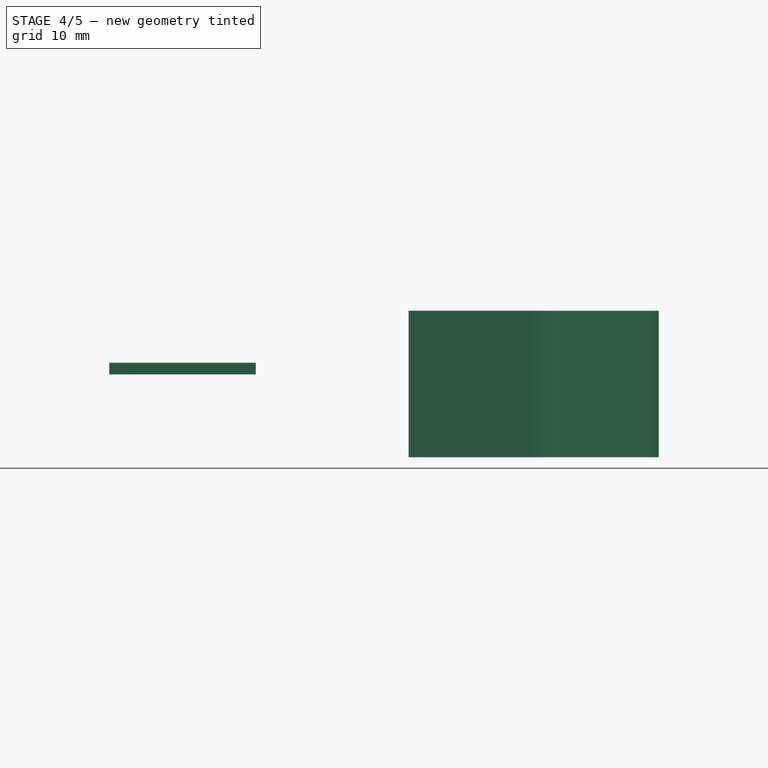
[diagram: stage 4 of 5 — front view after this stage's code; geometry added in this stage tinted green]
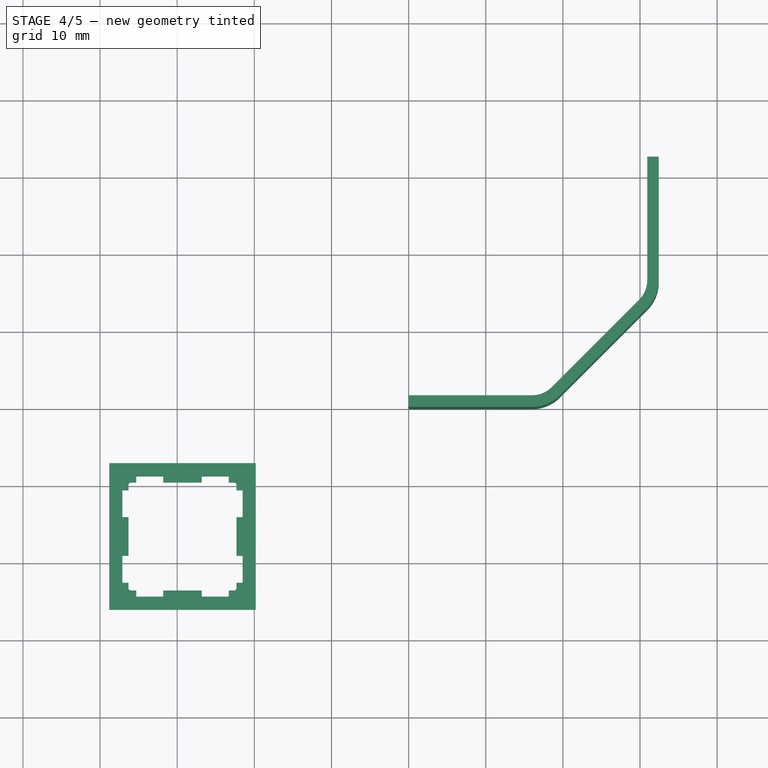
[diagram: stage 4 of 5 — top view after this stage's code; geometry added in this stage tinted green]
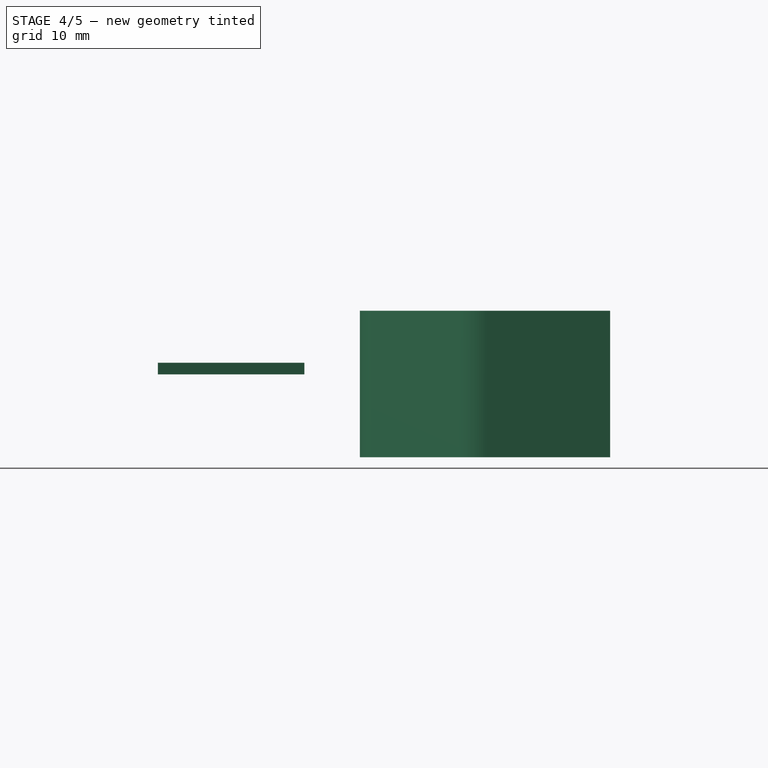
[diagram: stage 4 of 5 — right view after this stage's code; geometry added in this stage tinted green]
FEATURE [Part::Fillet] Fillet012
  Base = -> Fillet011
  Edges = 1 edges r=0.1: [Edge61]
FEATURE [Part::Fillet] Fillet013
  Base = -> Fillet012
  Edges = 1 edges r=0.1: [Edge78]
FEATURE [Part::Fillet] Fillet014
  Base = -> Fillet013
  Edges = 1 edges r=0.1: [Edge75]
FEATURE [Part::Fillet] Fillet015
  Base = -> Fillet014
  Edges = 1 edges r=0.1: [Edge117]
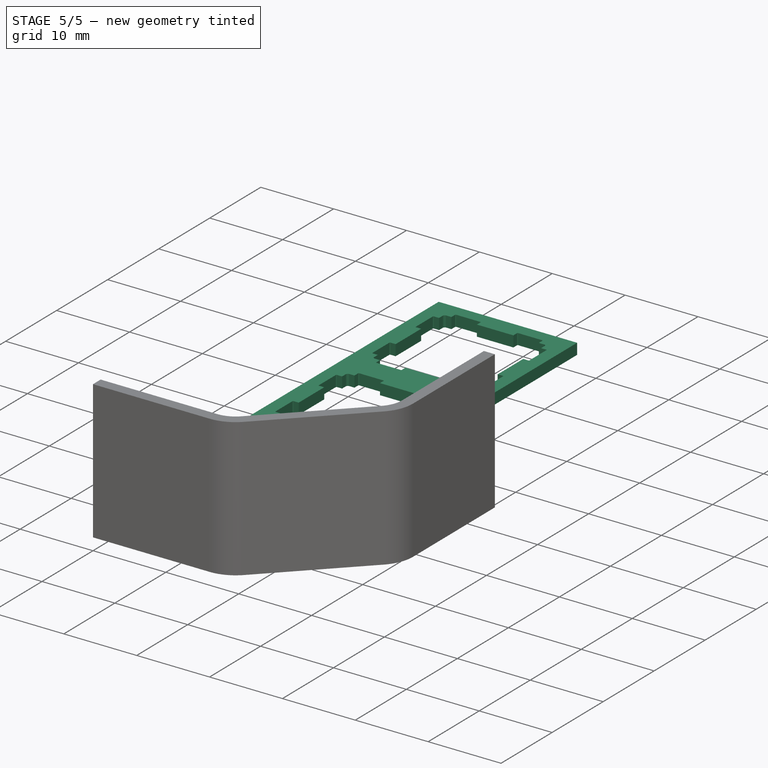
[diagram: stage 5 of 5 — iso view after this stage's code; geometry added in this stage tinted green]
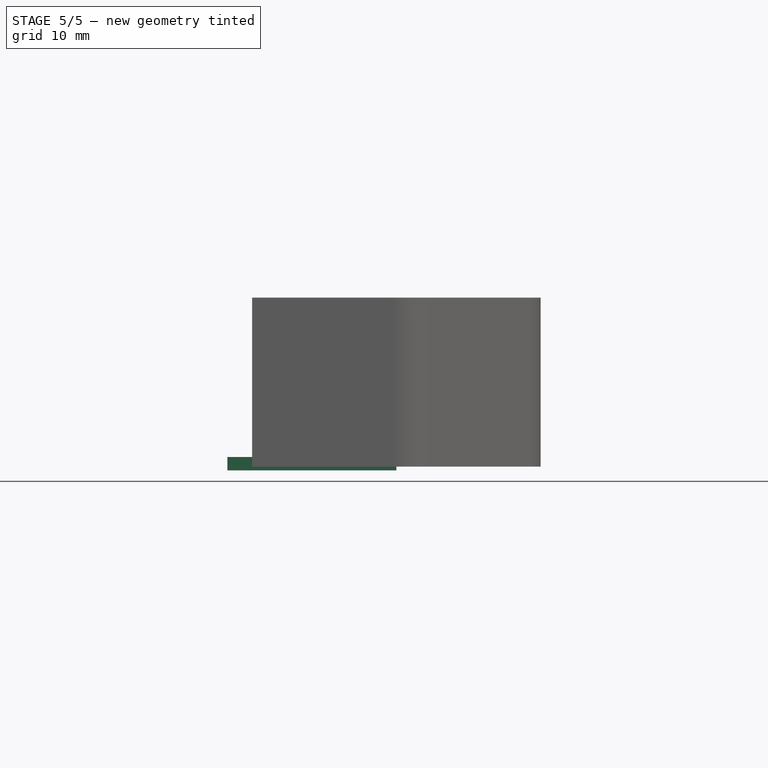
[diagram: stage 5 of 5 — front view after this stage's code; geometry added in this stage tinted green]
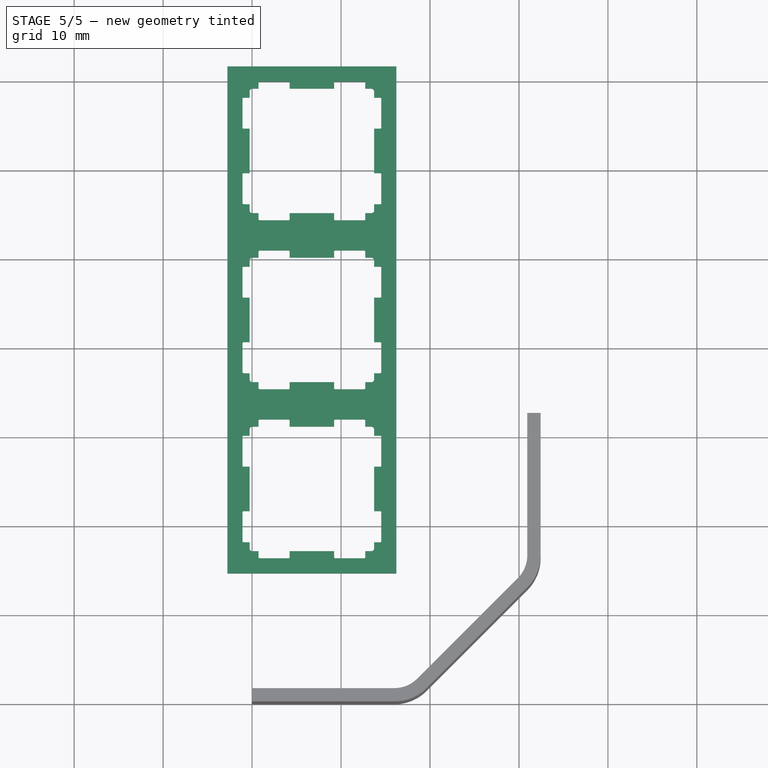
[diagram: stage 5 of 5 — top view after this stage's code; geometry added in this stage tinted green]
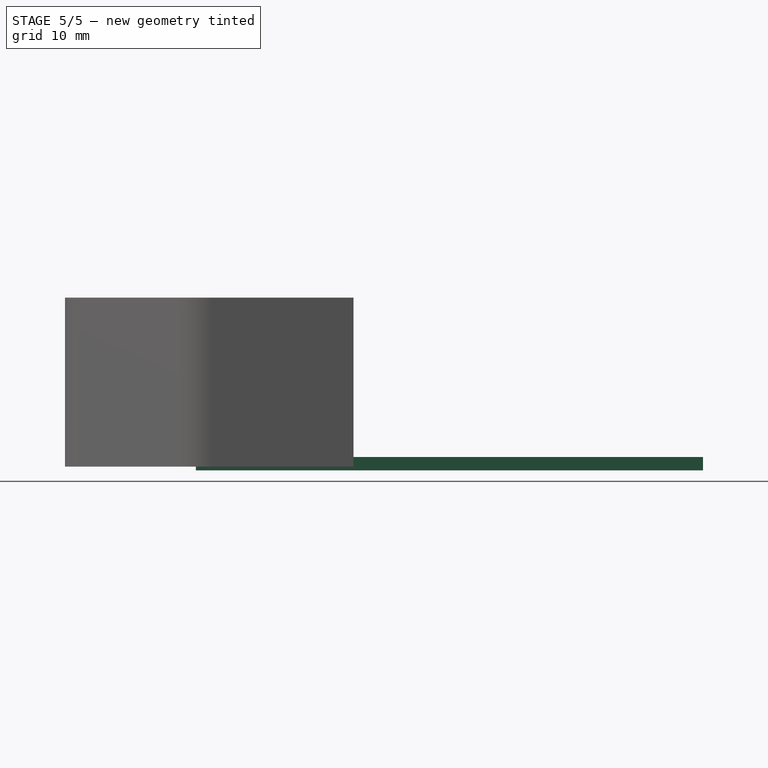
[diagram: stage 5 of 5 — right view after this stage's code; geometry added in this stage tinted green]
FEATURE [Part::Fillet] Fillet016
  Base = -> Fillet015
  Edges = 1 edges r=0.1: [Edge107]
FEATURE [Part::Fillet] Fillet017
  Base = -> Fillet016
  Edges = 1 edges r=0.1: [Edge82]
FEATURE [Part::Fillet] Fillet018
  Base = -> Fillet017
  Edges = 1 edges r=0.1: [Edge83]
FEATURE [Part::Fillet] Fillet019
  Base = -> Fillet018
  Edges = 1 edges r=0.1: [Edge84]
  Placement = pos=(24.6453,19.6289,-13.064) rot=(0,0,1;0rad)
FEATURE [Part::FeaturePython] Array  # Draft array (typed FeaturePython)
  Angle = 360
  ArrayType = 0
  Axis = (0,0,1)
  Base = -> Fillet019
  Center = (0,0,0)
  IntervalX = (1,0,0)
  IntervalY = (0,19,0)
  IntervalZ = (0,0,1)
  NumberPolar = 0
  NumberX = 1
  NumberY = 3
  NumberZ = 1
  Placement = pos=(11.3917,21.2803,1.89897) rot=(0,0,1;0rad)
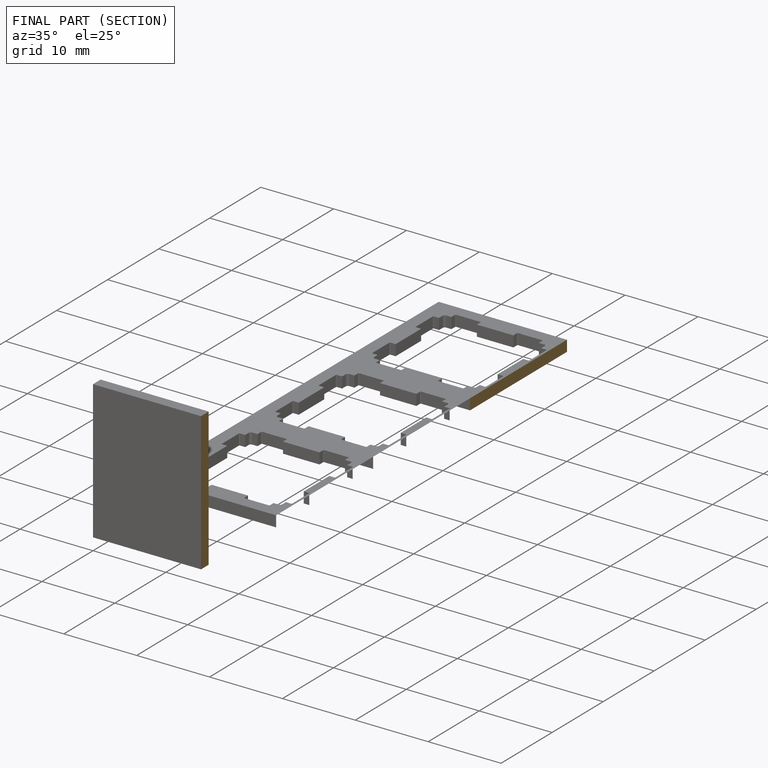
[diagram: finished part — half-section view (interior)]
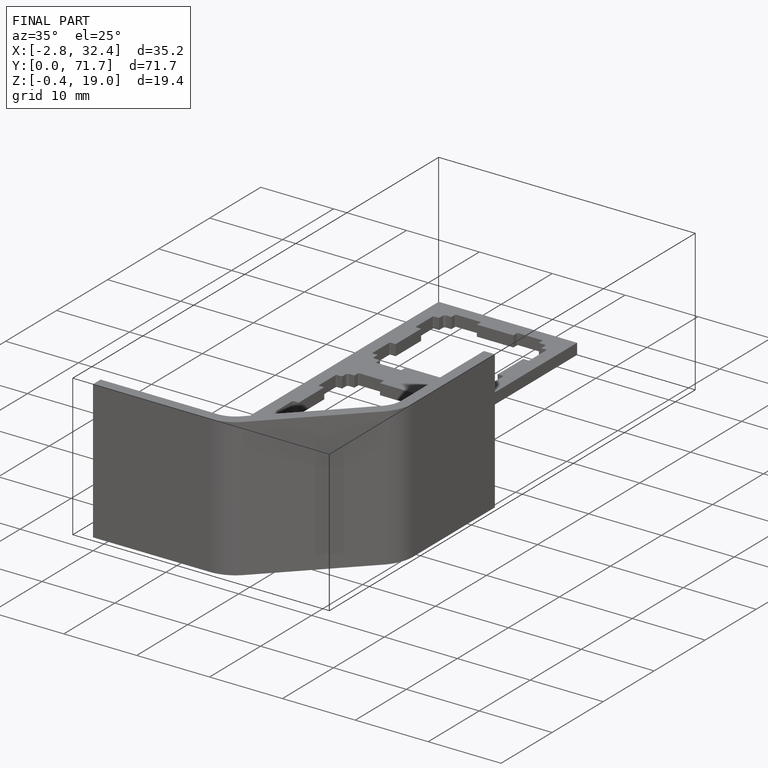
[diagram: finished part — iso view with bounding-box wireframe]
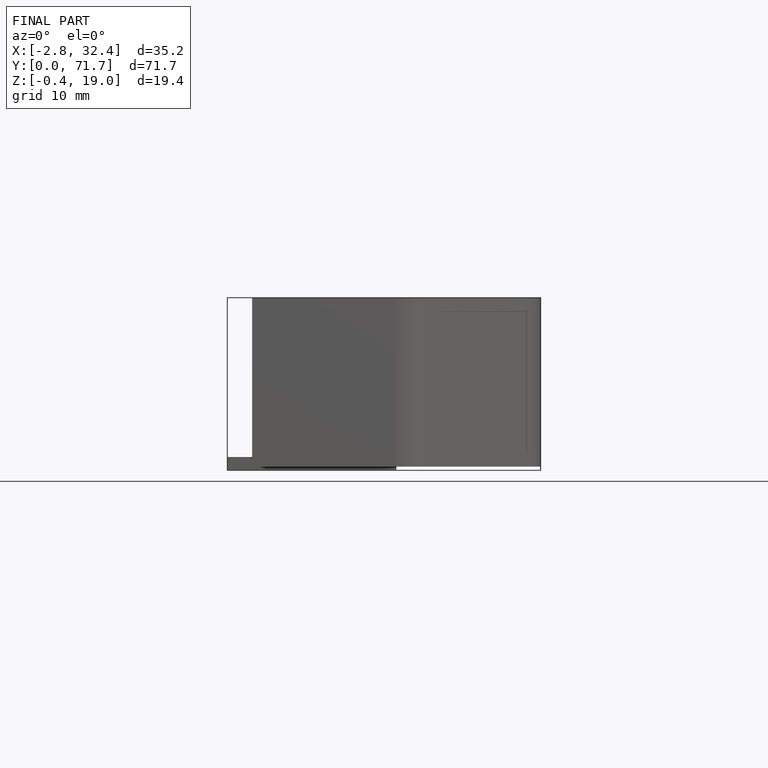
[diagram: finished part — front view with bounding-box wireframe]
